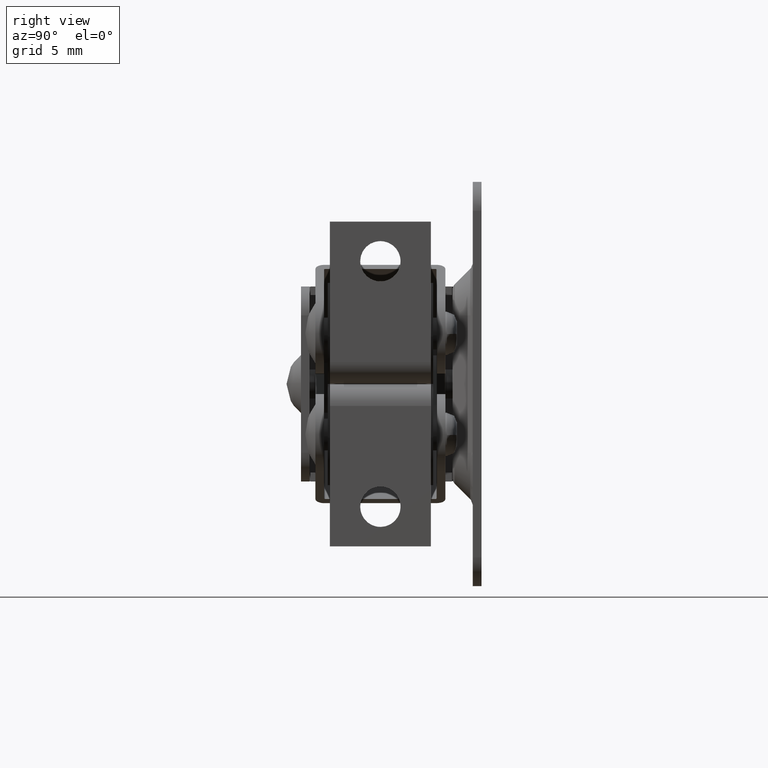
[diagram: clean part render]
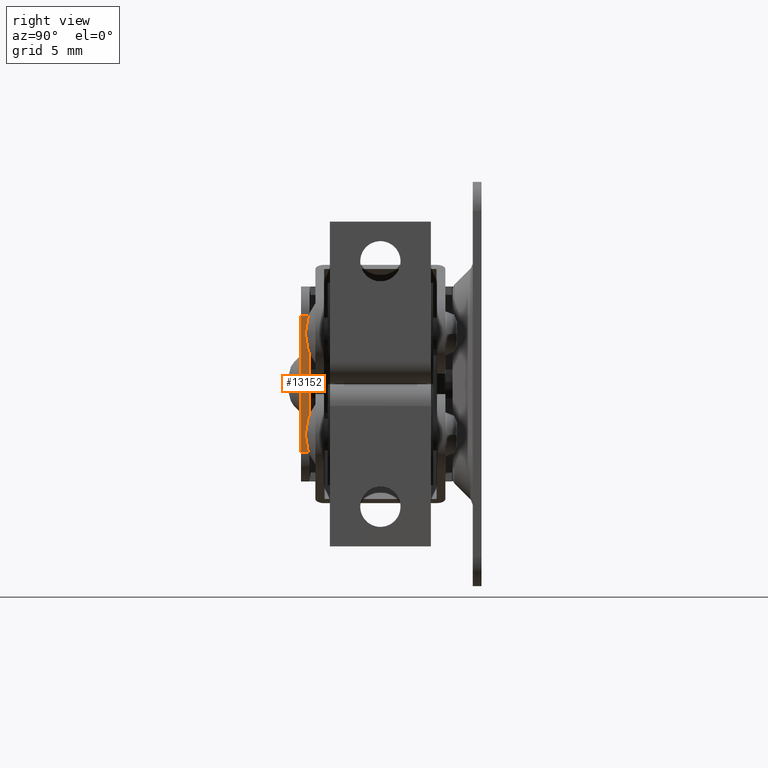
[diagram: same view with one face highlighted and labeled with its STEP entity id]
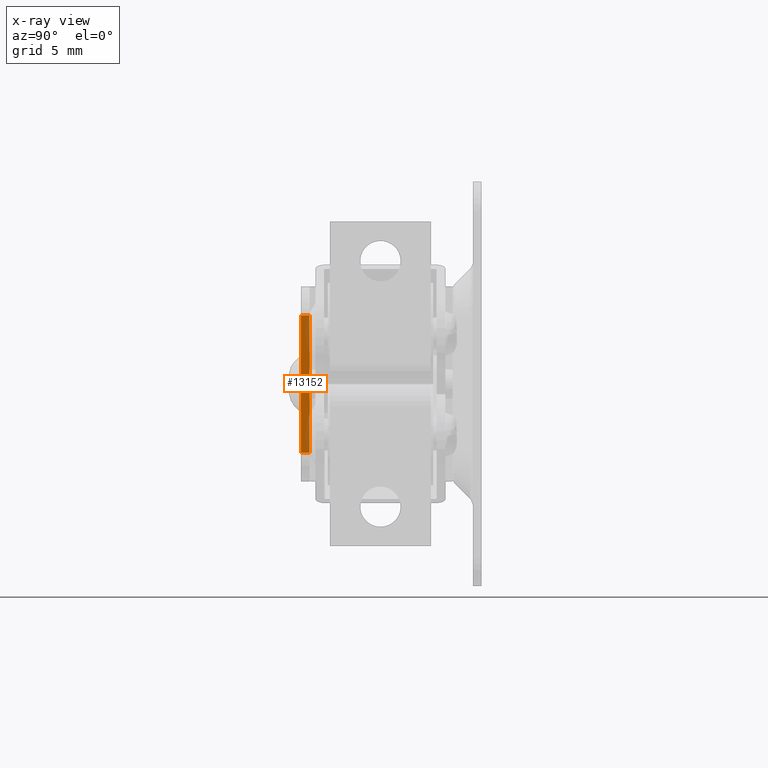
[diagram: x-ray of the same camera — body ghosted, the highlighted face saturated]
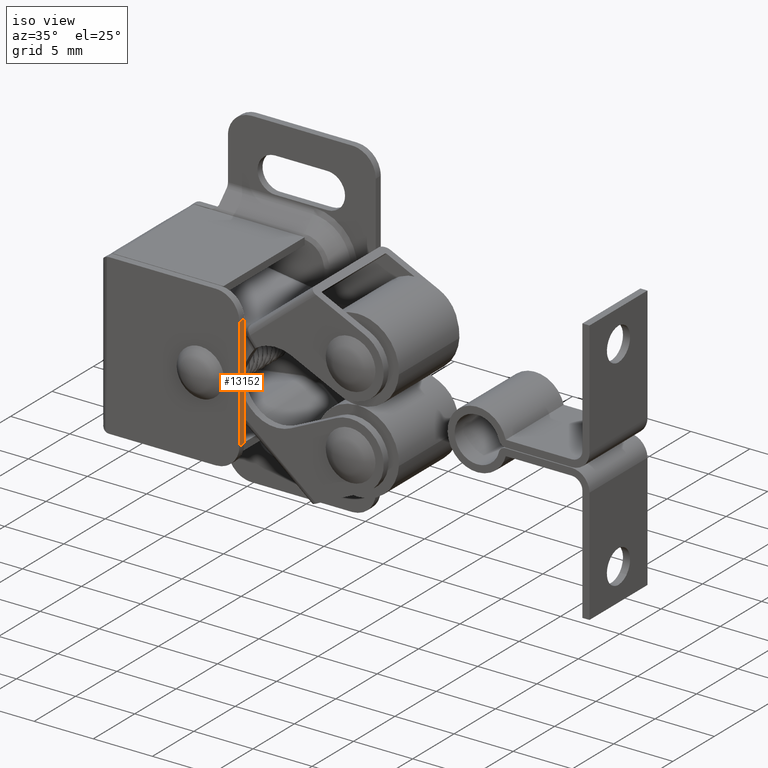
[diagram: same view with one face highlighted and labeled with its STEP entity id]
A machine part, right view. The second image highlights one B-rep face of the part: STEP entity #13152.
The next image is the same camera in x-ray: the body ghosted, the highlighted face saturated — about 16% of this face is hidden behind the body in this view.
A second angle (iso view) of the same face is appended — the face is thin or edge-on in the first view.
In plain terms, the highlighted face is a freeform B-spline surface patch.
Its self-contained STEP definition (entity closure, byte-faithful):
#12165=CARTESIAN_POINT('',(3.099999000000000,-11.899994000000021,-14.750000000000000));
#12166=VERTEX_POINT('',#12165);
#12182=CARTESIAN_POINT('',(3.099999000000000,-12.500000000000000,-14.750000000000000));
#12183=VERTEX_POINT('',#12182);
#12184=CARTESIAN_POINT('',(3.099999000000000,-12.500000000000000,-14.750000000000000));
#12185=CARTESIAN_POINT('',(3.099999000000000,-11.899994000000021,-14.750000000000000));
#12186=QUASI_UNIFORM_CURVE('',1,(#12184,#12185),.UNSPECIFIED.,.F.,.U.);
#12187=EDGE_CURVE('',#12183,#12166,#12186,.T.);
#12228=CARTESIAN_POINT('',(3.099999000000000,-11.899994000000021,-5.250000000000000));
#12229=VERTEX_POINT('',#12228);
#12250=CARTESIAN_POINT('',(3.099999000000000,-12.500000000000000,-5.250000000000000));
#12251=VERTEX_POINT('',#12250);
#12265=CARTESIAN_POINT('',(3.099999000000000,-11.899994000000021,-5.250000000000000));
#12266=CARTESIAN_POINT('',(3.099999000000000,-12.500000000000000,-5.250000000000000));
#12267=QUASI_UNIFORM_CURVE('',1,(#12265,#12266),.UNSPECIFIED.,.F.,.U.);
#12268=EDGE_CURVE('',#12229,#12251,#12267,.T.);
#13133=CARTESIAN_POINT('',(3.099999000000000,-12.529970302824360,-15.224524981587161));
#13134=CARTESIAN_POINT('',(3.099999000000000,-12.529970302824360,-4.775474763602987));
#13135=CARTESIAN_POINT('',(3.099999000000000,-11.870023595250700,-15.224524981587161));
#13136=CARTESIAN_POINT('',(3.099999000000000,-11.870023595250700,-4.775474763602987));
#13137=B_SPLINE_SURFACE_WITH_KNOTS('',1,1,((#13133,#13135),(#13134,#13136)),.UNSPECIFIED.,.F.,.F.,.U.,(2,2),(2,2),(0.0,10.449050217984171),(0.041708328993991,0.958291812567040),.UNSPECIFIED.);
#13138=CARTESIAN_POINT('',(3.099999000000000,-11.899994000000021,-14.750000000000000));
#13139=CARTESIAN_POINT('',(3.099999000000000,-11.899994000000021,-5.250000000000000));
#13140=QUASI_UNIFORM_CURVE('',1,(#13138,#13139),.UNSPECIFIED.,.F.,.U.);
#13141=EDGE_CURVE('',#12166,#12229,#13140,.T.);
#13142=ORIENTED_EDGE('',*,*,#13141,.T.);
#13143=ORIENTED_EDGE('',*,*,#12268,.T.);
#13144=CARTESIAN_POINT('',(3.099999000000000,-12.500000000000000,-14.750000000000000));
#13145=CARTESIAN_POINT('',(3.099999000000000,-12.500000000000000,-5.250000000000000));
#13146=QUASI_UNIFORM_CURVE('',1,(#13144,#13145),.UNSPECIFIED.,.F.,.U.);
#13147=EDGE_CURVE('',#12183,#12251,#13146,.T.);
#13148=ORIENTED_EDGE('',*,*,#13147,.F.);
#13149=ORIENTED_EDGE('',*,*,#12187,.T.);
#13150=EDGE_LOOP('',(#13142,#13143,#13148,#13149));
#13151=FACE_OUTER_BOUND('',#13150,.T.);
#13152=ADVANCED_FACE('',(#13151),#13137,.F.);